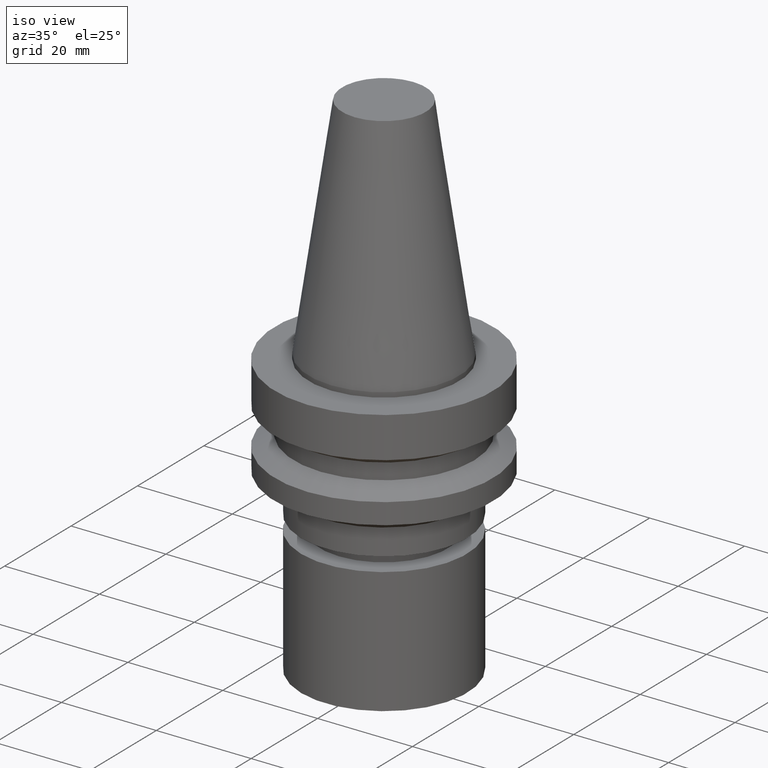
[diagram: clean part render]
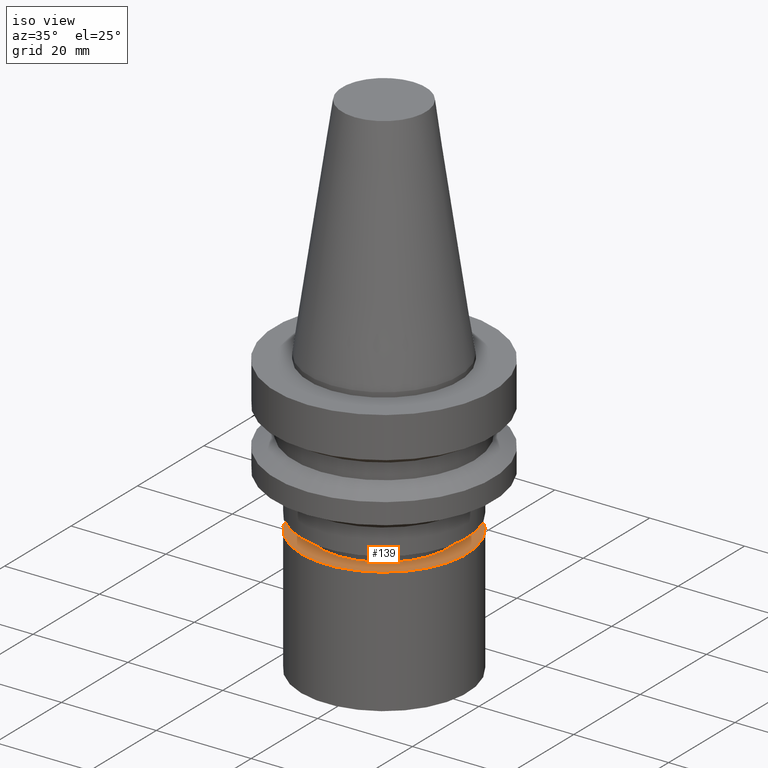
[diagram: same view with one face highlighted and labeled with its STEP entity id]
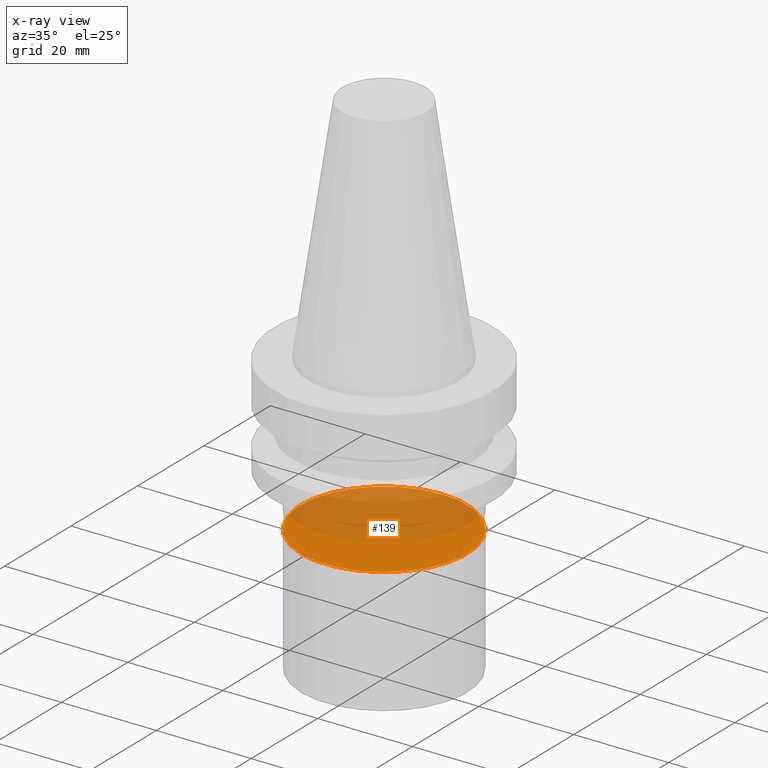
[diagram: x-ray of the same camera — body ghosted, the highlighted face saturated]
A machine part, iso view. The second image highlights one B-rep face of the part: STEP entity #139.
The next image is the same camera in x-ray: the body ghosted, the highlighted face saturated — about 57% of this face is hidden behind the body in this view.
In plain terms, the highlighted planar face has unit normal (-0, -0, 1).
Its self-contained STEP definition (entity closure, byte-faithful):
#114=EDGE_CURVE('Unnamed[1]',#261,#261,#262,.T.);
#139=ADVANCED_FACE('Unnamed[1]',(#300),#301,.T.);
#261=VERTEX_POINT('',#451);
#262=CIRCLE('',#452,17.5);
#300=FACE_OUTER_BOUND('',#500,.T.);
#301=PLANE('',#501);
#451=CARTESIAN_POINT('',(2.05128432290318E-015,17.5,-33.5000152587891));
#452=AXIS2_PLACEMENT_3D('',#646,#647,#648);
#500=EDGE_LOOP('',(#689));
#501=AXIS2_PLACEMENT_3D('',#690,#691,#692);
#646=CARTESIAN_POINT('',(2.05128432290318E-015,4.10256864580635E-015,-33.5000152587891));
#647=DIRECTION('',(6.12323399573677E-017,1.22464679914735E-016,-1.0));
#648=DIRECTION('',(-1.23259516440783E-032,1.0,1.22464679914735E-016));
#689=ORIENTED_EDGE('',*,*,#114,.F.);
#690=CARTESIAN_POINT('',(2.05128432290318E-015,8.75000000000001,-33.5000152587891));
#691=DIRECTION('',(-6.12323399573677E-017,-1.22464679914735E-016,1.0));
#692=DIRECTION('',(1.23259516440783E-032,-1.0,-1.22464679914735E-016));